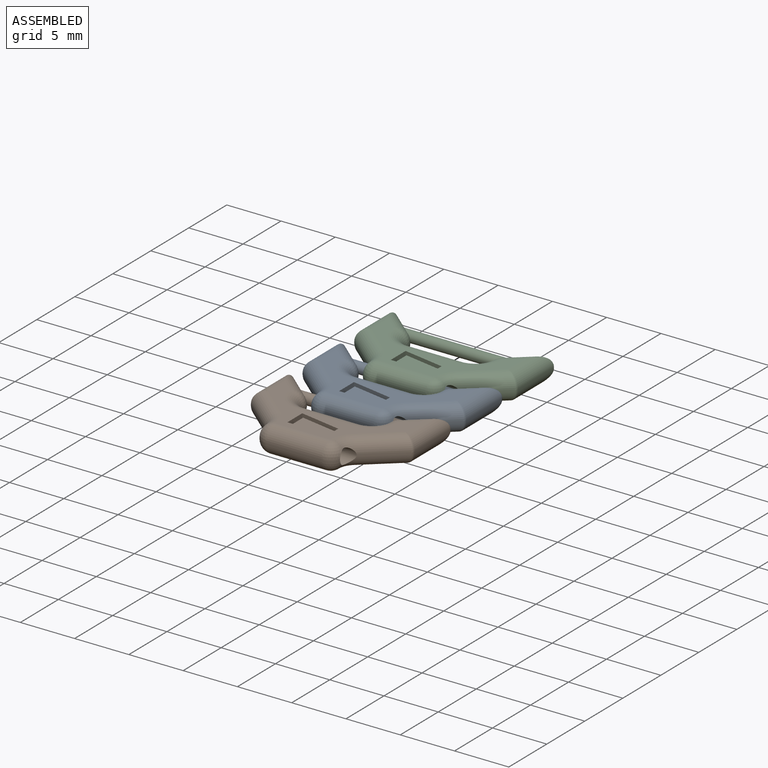
[diagram: assembled view]
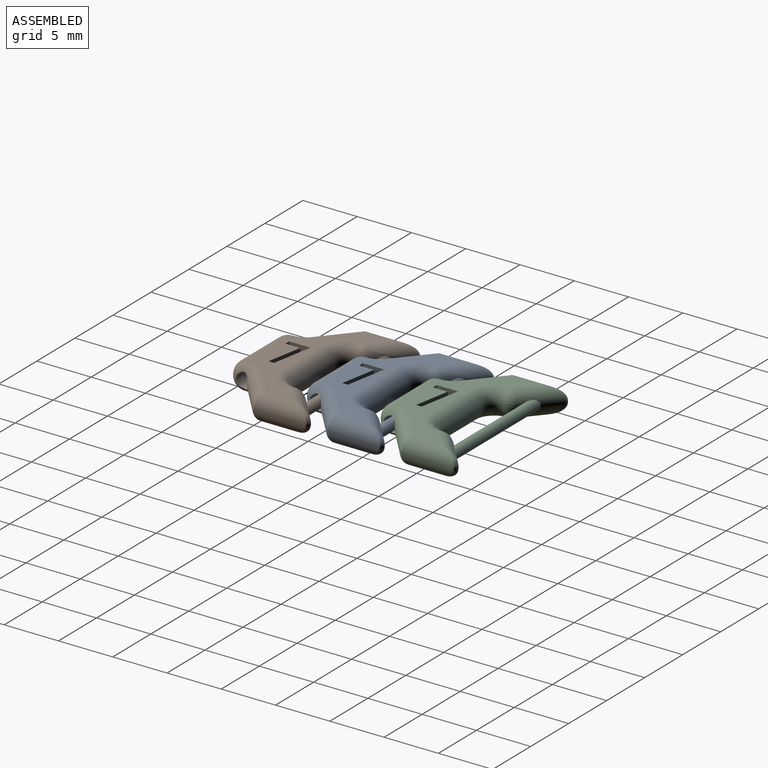
[diagram: assembled view, second angle]
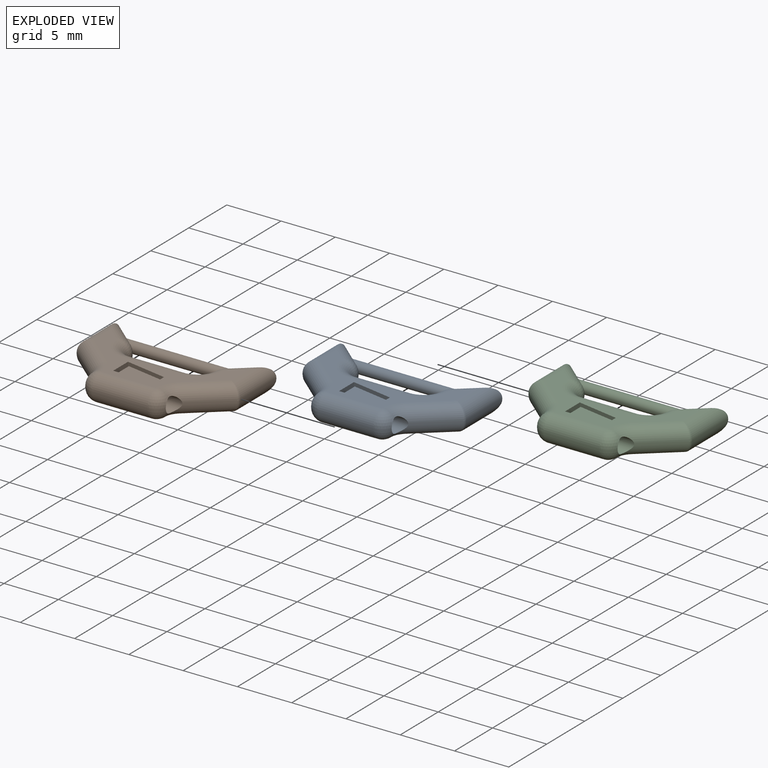
[diagram: exploded view]
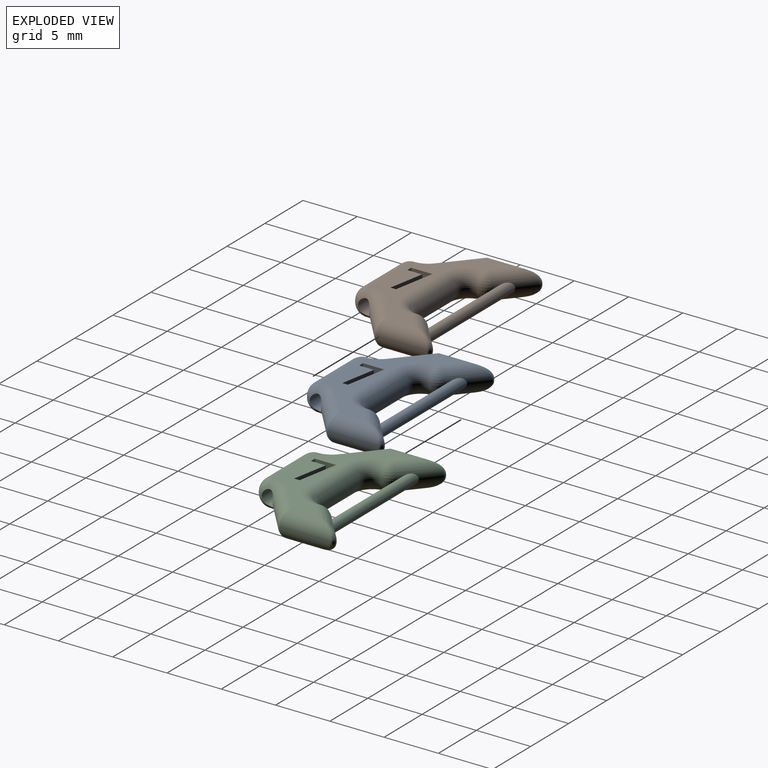
[diagram: exploded view, second angle]
ASSEMBLY  parts=3 mates=2
PART A: 81 faces, bbox 15.6x10.5x2.5 mm
  f0: plane 12.6x6.64mm, normal (0,0,1), area 26.2mm2, adj f4,f5,f26,f27,f28,f29,f30,f31
  f1: cylinder r=0.7mm len=8.46mm, axis (1,0,0), area 33.1mm2, adj f9,f17,f19,f24,f30,f32,f34,f36
  f2: plane 1.44x1.23mm, normal (-0.65,0.76,0), area 0.2mm2, adj f4,f6,f61,f70
  f3: plane 0.25x0.21mm, normal (0.65,0.76,0), area 0mm2, adj f5,f7,f23,f61
  f4: cylinder r=1.2mm len=3.62mm, axis (0.76,0.65,0), area 5.2mm2, adj f0,f2,f11,f25,f61,f71
  f5: cylinder r=1.2mm len=3.62mm, axis (0.76,-0.65,0), area 5.2mm2, adj f0,f3,f15,f35,f61,f72
  f6: cylinder r=1.2mm len=3.62mm, axis (-0.76,-0.65,0), area 5.2mm2, adj f2,f11,f18,f43,f61,f69
  f7: cylinder r=1.2mm len=3.62mm, axis (-0.76,0.65,0), area 5.2mm2, adj f3,f15,f18,f54,f61,f74
  f8: plane 5.1x0.1mm, normal (0,-1,0), area 0.5mm2, adj f19,f24,f37,f55
  f9: plane 3.17x2.72mm, normal (0.65,-0.76,0), area 0.4mm2, adj f1,f30,f47,f76
  f10: plane 4.66x0.1mm, normal (1,0,0), area 0.5mm2, adj f28,f45,f70,f76
  f11: plane 0.25x0.21mm, normal (-0.65,0.76,0), area 0mm2, adj f4,f6,f20,f61
  f12: plane 0.1x0.03mm, normal (-1,0,0), area 0mm2, adj f20,f21,f26,f44
  f13: plane 5.1x0.1mm, normal (0,1,0), area 0.5mm2, adj f21,f22,f29,f48
  f14: plane 0.1x0.03mm, normal (1,0,0), area 0mm2, adj f22,f23,f33,f52
  f15: plane 1.44x1.23mm, normal (0.65,0.76,0), area 0.2mm2, adj f5,f7,f61,f73
  f16: plane 4.66x0.1mm, normal (-1,0,0), area 0.5mm2, adj f38,f57,f73,f79
  f17: plane 3.17x2.72mm, normal (-0.65,-0.76,0), area 0.4mm2, adj f1,f40,f59,f79
  f18: plane 12.6x6.64mm, normal (0,0,-1), area 28.8mm2, adj f6,f7,f44,f45,f46,f47,f48,f49
  f19: cylinder r=1.2mm len=1.13mm, axis (0,0,1), area 0.1mm2, adj f1,f8,f36,f53
  f20: cylinder r=1.2mm len=0.91mm, axis (0,0,-1), area 0.1mm2, adj f11,f12,f25,f43
  f21: cylinder r=1.2mm len=1.2mm, axis (0,0,1), area 0.2mm2, adj f12,f13,f27,f46
  f22: cylinder r=1.2mm len=1.2mm, axis (0,0,-1), area 0.2mm2, adj f13,f14,f31,f50
  f23: cylinder r=1.2mm len=0.91mm, axis (0,0,-1), area 0.1mm2, adj f3,f14,f35,f54
  f24: cylinder r=1.2mm len=1.13mm, axis (0,0,-1), area 0.1mm2, adj f1,f8,f39,f56
  f25: sphere r=1.2mm, area 1.2mm2, adj f4,f20,f26
  f26: cylinder r=1.2mm len=1.2mm, axis (0,1,0), area 0.1mm2, adj f0,f12,f25,f27
  f27: torus R=2.4mm, axis (0,0,1), area 4.8mm2, adj f0,f21,f26,f29
  f28: cylinder r=1.2mm len=4.66mm, axis (0,-1,0), area 7.2mm2, adj f0,f10,f71,f77
  f29: cylinder r=1.2mm len=5.1mm, axis (1,0,0), area 9.6mm2, adj f0,f13,f27,f31
  f30: cylinder r=1.2mm len=4.01mm, axis (-0.76,-0.65,0), area 7.7mm2, adj f0,f1,f9,f32,f77
  f31: torus R=2.4mm, axis (0,0,1), area 4.8mm2, adj f0,f22,f29,f33
  f32: torus R=2.4mm, axis (0,0,1), area 2.1mm2, adj f0,f1,f30,f34
  f33: cylinder r=1.2mm len=1.2mm, axis (0,-1,0), area 0.1mm2, adj f0,f14,f31,f35
  f34: cylinder r=1.2mm len=1.05mm, axis (0,-1,0), area 0mm2, adj f0,f1,f32,f36
  f35: sphere r=1.2mm, area 1.2mm2, adj f5,f23,f33
  f36: sphere r=1.2mm, area 2.1mm2, adj f1,f19,f34,f37
  f37: cylinder r=1.2mm len=5.1mm, axis (-1,0,0), area 9.6mm2, adj f0,f8,f36,f39
  f38: cylinder r=1.2mm len=4.66mm, axis (0,1,0), area 7.2mm2, adj f0,f16,f72,f80
  f39: sphere r=1.2mm, area 2.1mm2, adj f1,f24,f37,f41
  f40: cylinder r=1.2mm len=4.01mm, axis (-0.76,0.65,0), area 7.7mm2, adj f0,f1,f17,f42,f80
  f41: cylinder r=1.2mm len=1.05mm, axis (0,1,0), area 0mm2, adj f0,f1,f39,f42
  f42: torus R=2.4mm, axis (0,0,1), area 2.1mm2, adj f0,f1,f40,f41
  f43: sphere r=1.2mm, area 1.2mm2, adj f6,f20,f44
  f44: cylinder r=1.2mm len=1.2mm, axis (0,-1,0), area 0.1mm2, adj f12,f18,f43,f46
  f45: cylinder r=1.2mm len=4.66mm, axis (0,1,0), area 7.2mm2, adj f10,f18,f69,f75
  f46: torus R=2.4mm, axis (0,0,1), area 4.8mm2, adj f18,f21,f44,f48
  f47: cylinder r=1.2mm len=4.01mm, axis (0.76,0.65,0), area 7.7mm2, adj f1,f9,f18,f49,f75
  f48: cylinder r=1.2mm len=5.1mm, axis (-1,0,0), area 9.6mm2, adj f13,f18,f46,f50
  f49: torus R=2.4mm, axis (0,0,1), area 2.1mm2, adj f1,f18,f47,f51
  f50: torus R=2.4mm, axis (0,0,1), area 4.8mm2, adj f18,f22,f48,f52
  f51: cylinder r=1.2mm len=1.05mm, axis (0,1,0), area 0mm2, adj f1,f18,f49,f53
  f52: cylinder r=1.2mm len=1.2mm, axis (0,1,0), area 0.1mm2, adj f14,f18,f50,f54
  f53: sphere r=1.2mm, area 2.1mm2, adj f1,f19,f51,f55
  f54: sphere r=1.2mm, area 1.2mm2, adj f7,f23,f52
  f55: cylinder r=1.2mm len=5.1mm, axis (1,0,0), area 9.6mm2, adj f8,f18,f53,f56
  f56: sphere r=1.2mm, area 2.1mm2, adj f1,f24,f55,f58
  f57: cylinder r=1.2mm len=4.66mm, axis (0,-1,0), area 7.2mm2, adj f16,f18,f74,f78
  f58: cylinder r=1.2mm len=1.05mm, axis (0,-1,0), area 0mm2, adj f1,f18,f56,f60
  f59: cylinder r=1.2mm len=4.01mm, axis (0.76,-0.65,0), area 7.7mm2, adj f1,f17,f18,f60,f78
  f60: torus R=2.4mm, axis (0,0,1), area 2.1mm2, adj f1,f18,f58,f59
  f61: cylinder r=0.5mm len=11.14mm, axis (-1,0,0), area 31.8mm2, adj f2,f3,f4,f5,f6,f7,f11,f15
  f62: plane 1.95x0.7mm, normal (1,0,0), area 1.4mm2, adj f0,f1,f63,f65,f68
  f63: plane 0.62x0.5mm, normal (0,1,0), area 0.3mm2, adj f0,f1,f62,f64
  f64: plane 1.35x0.7mm, normal (-1,0,0), area 0.9mm2, adj f0,f1,f63,f65,f66
  f65: plane 3.8x1.83mm, normal (0,0,1), area 2.6mm2, adj f1,f62,f64,f66,f67,f68
  f66: plane 3.3x0.7mm, normal (0.18,0.98,0), area 2.3mm2, adj f0,f64,f65,f67
  f67: plane 0.7x0.51mm, normal (-1,0,0), area 0.4mm2, adj f0,f65,f66,f68
  f68: plane 3.8x0.7mm, normal (-0.18,-0.98,0), area 2.7mm2, adj f0,f62,f65,f67
  f69: bspline ~2.61x1.53mm, area 1.1mm2, adj f6,f45,f70
  f70: cylinder r=0.3mm len=0.5mm, axis (0,0,-1), area 0.1mm2, adj f2,f10,f69,f71
  f71: bspline ~2.61x1.53mm, area 1.1mm2, adj f4,f28,f70
  f72: bspline ~2.61x1.53mm, area 1.1mm2, adj f5,f38,f73
  f73: cylinder r=0.3mm len=0.5mm, axis (0,0,-1), area 0.1mm2, adj f15,f16,f72,f74
  f74: bspline ~2.61x1.53mm, area 1.1mm2, adj f7,f57,f73
  f75: bspline ~1.37x1.2mm, area 0.3mm2, adj f45,f47,f76
  f76: cylinder r=0.3mm len=0.23mm, axis (0,0,-1), area 0mm2, adj f9,f10,f75,f77
  f77: bspline ~1.37x1.2mm, area 0.3mm2, adj f28,f30,f76
  f78: bspline ~1.37x1.2mm, area 0.3mm2, adj f57,f59,f79
  f79: cylinder r=0.3mm len=0.23mm, axis (0,0,-1), area 0mm2, adj f16,f17,f78,f80
  f80: bspline ~1.37x1.2mm, area 0.3mm2, adj f38,f40,f79
PART B: same geometry as A
PART C: same geometry as A
PLACE A t=(-5.9,-0.19,12.39)mm
PLACE B t=(-5.9,-6.99,12.39)mm
PLACE C t=(-5.9,6.61,12.39)mm
MATE revolute C.f1 <-> A.f61  axis (1,0,0) through (-5.9,8.11,12.39)mm
MATE revolute A.f1 <-> B.f61  axis (1,0,0) through (-5.9,1.31,12.39)mm
